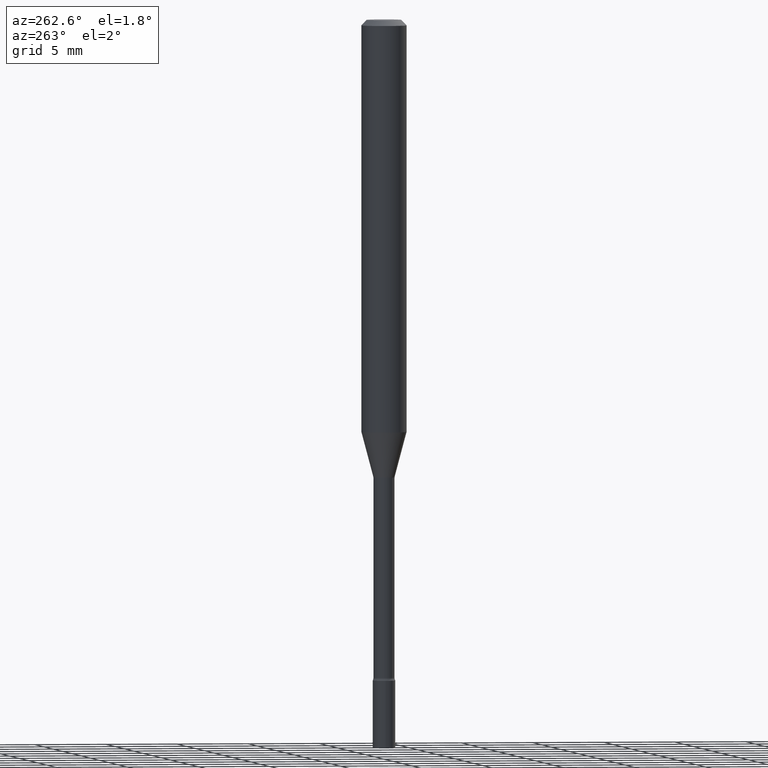
[diagram: clean part render]
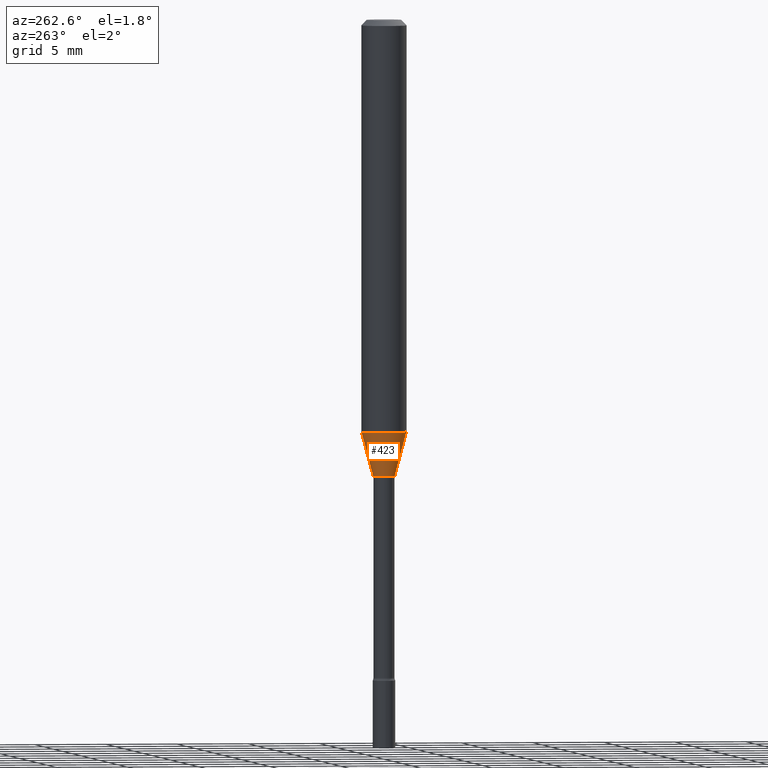
[diagram: same view with one face highlighted and labeled with its STEP entity id]
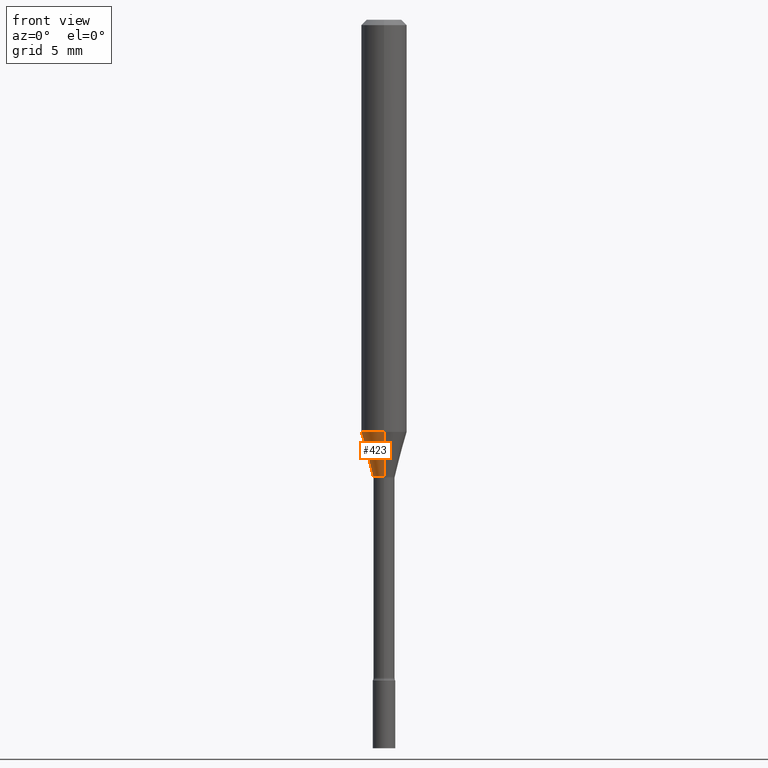
[diagram: same view with one face highlighted and labeled with its STEP entity id]
A machine part, auxiliary view. The second image highlights one B-rep face of the part: STEP entity #423.
A second angle (front view) of the same face is appended — the face is thin or edge-on in the first view.
In plain terms, the highlighted conical surface has half-angle 15 deg.
Its self-contained STEP definition (entity closure, byte-faithful):
#2 = AXIS2_PLACEMENT_3D ( 'NONE', #144, #304, #267 ) ;
#7 = ORIENTED_EDGE ( 'NONE', *, *, #371, .F. ) ;
#8 = VERTEX_POINT ( 'NONE', #21 ) ;
#21 = CARTESIAN_POINT ( 'NONE',  ( -2.071224423039705600E-16, -0.02966111260566836605, -1.254092501787273051 ) ) ;
#34 = DIRECTION ( 'NONE',  ( -6.982962677686265922E-15, -1.000000000000000000, 0.000000000000000000 ) ) ;
#55 = EDGE_CURVE ( 'NONE', #8, #463, #280, .T. ) ;
#58 = LINE ( 'NONE', #227, #347 ) ;
#64 = ORIENTED_EDGE ( 'NONE', *, *, #70, .F. ) ;
#70 = EDGE_CURVE ( 'NONE', #489, #474, #58, .T. ) ;
#92 = CARTESIAN_POINT ( 'NONE',  ( 4.440892098500900291E-16, 0.06249999999999602401, -1.131536105567578554 ) ) ;
#96 = VECTOR ( 'NONE', #103, 39.37007874015748854 ) ;
#103 = DIRECTION ( 'NONE',  ( -1.807323732225328562E-15, -0.2588190451025179639, 0.9659258262890690894 ) ) ;
#114 = EDGE_CURVE ( 'NONE', #489, #8, #181, .T. ) ;
#132 = CARTESIAN_POINT ( 'NONE',  ( 3.274220454076450364E-16, 0.02966111260565960916, -1.254092501787273051 ) ) ;
#144 = CARTESIAN_POINT ( 'NONE',  ( 3.066854235876012997E-29, -4.378626042271803286E-15, -1.254092501787273051 ) ) ;
#163 = DIRECTION ( 'NONE',  ( -2.445476893853745621E-29, 3.491469756841376044E-15, 1.000000000000000000 ) ) ;
#170 = CONICAL_SURFACE ( 'NONE', #2, 0.02966111260566398414, 0.2617993877991500740 ) ;
#181 = CIRCLE ( 'NONE', #467, 0.02966111260566398414 ) ;
#186 = DIRECTION ( 'NONE',  ( -6.982962677686265922E-15, -1.000000000000000000, 4.370956789862821150E-15 ) ) ;
#204 = AXIS2_PLACEMENT_3D ( 'NONE', #500, #460, #186 ) ;
#227 = CARTESIAN_POINT ( 'NONE',  ( 2.107548809651994522E-16, 0.02966111260565960570, -1.254092501787273051 ) ) ;
#230 = CARTESIAN_POINT ( 'NONE',  ( -2.071224423039705600E-16, -0.02966111260566836605, -1.254092501787273051 ) ) ;
#243 = EDGE_LOOP ( 'NONE', ( #64, #295, #298, #7 ) ) ;
#267 = DIRECTION ( 'NONE',  ( -6.982962677686265922E-15, -1.000000000000000000, 0.000000000000000000 ) ) ;
#280 = LINE ( 'NONE', #230, #96 ) ;
#295 = ORIENTED_EDGE ( 'NONE', *, *, #114, .T. ) ;
#298 = ORIENTED_EDGE ( 'NONE', *, *, #55, .T. ) ;
#304 = DIRECTION ( 'NONE',  ( -2.445476893853745621E-29, 3.491469756841376044E-15, 1.000000000000000000 ) ) ;
#316 = CIRCLE ( 'NONE', #204, 0.06250000000000000000 ) ;
#347 = VECTOR ( 'NONE', #391, 39.37007874015748854 ) ;
#371 = EDGE_CURVE ( 'NONE', #474, #463, #316, .T. ) ;
#391 = DIRECTION ( 'NONE',  ( 1.839019923739598738E-15, 0.2588190451025247363, 0.9659258262890673130 ) ) ;
#423 = ADVANCED_FACE ( 'NONE', ( #472 ), #170, .T. ) ;
#436 = CARTESIAN_POINT ( 'NONE',  ( 3.066854235876012997E-29, -4.378626042271803286E-15, -1.254092501787273051 ) ) ;
#445 = CARTESIAN_POINT ( 'NONE',  ( -4.364351673553641579E-16, -0.06250000000000398293, -1.131536105567577888 ) ) ;
#460 = DIRECTION ( 'NONE',  ( -2.445476893853745621E-29, 3.491469756841376044E-15, 1.000000000000000000 ) ) ;
#463 = VERTEX_POINT ( 'NONE', #445 ) ;
#467 = AXIS2_PLACEMENT_3D ( 'NONE', #436, #163, #34 ) ;
#472 = FACE_OUTER_BOUND ( 'NONE', #243, .T. ) ;
#474 = VERTEX_POINT ( 'NONE', #92 ) ;
#489 = VERTEX_POINT ( 'NONE', #132 ) ;
#500 = CARTESIAN_POINT ( 'NONE',  ( 2.767145400726764925E-29, -3.950724091363269662E-15, -1.131536105567578110 ) ) ;